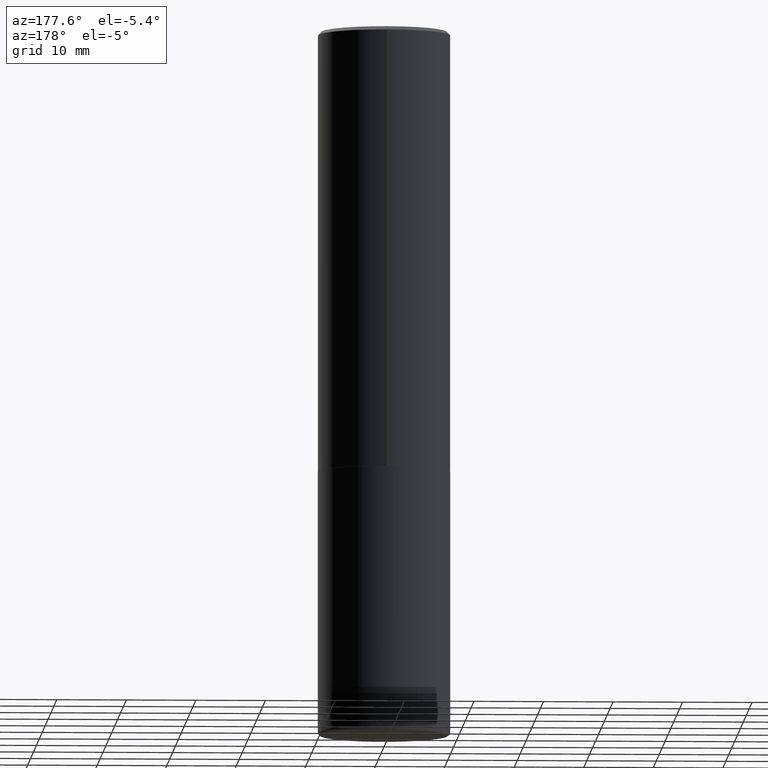
[diagram: clean part render]
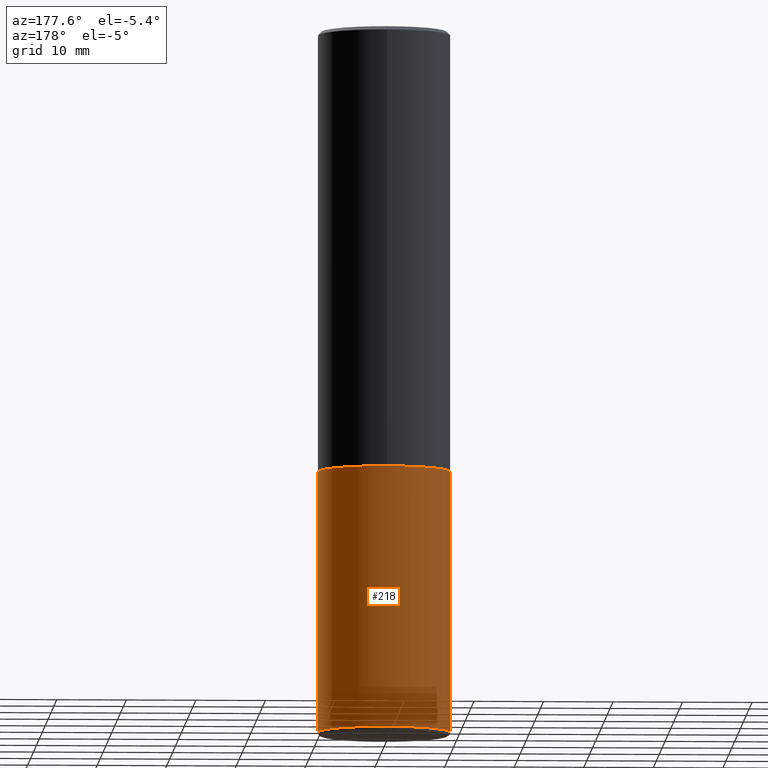
[diagram: same view with one face highlighted and labeled with its STEP entity id]
A machine part, auxiliary view. The second image highlights one B-rep face of the part: STEP entity #218.
In plain terms, the highlighted cylindrical surface (partial cylindrical patch) has radius 9.525 mm, axis along (-0, 0, 1).
Its self-contained STEP definition (entity closure, byte-faithful):
#10 = DIRECTION ( 'NONE',  ( -2.445468806185136597E-29, 3.491481338843145583E-15, 1.000000000000000000 ) ) ;
#13 = CYLINDRICAL_SURFACE ( 'NONE', #183, 0.3750000000000000555 ) ;
#17 = DIRECTION ( 'NONE',  ( 1.000000000000000000, -6.982962677686265922E-15, 4.876176775795935793E-29 ) ) ;
#19 = ORIENTED_EDGE ( 'NONE', *, *, #369, .T. ) ;
#31 = DIRECTION ( 'NONE',  ( 1.000000000000000000, -6.982962677686264344E-15, 0.000000000000000000 ) ) ;
#34 = VERTEX_POINT ( 'NONE', #95 ) ;
#40 = CARTESIAN_POINT ( 'NONE',  ( 0.000000000000000000, 0.000000000000000000, 0.000000000000000000 ) ) ;
#53 = EDGE_CURVE ( 'NONE', #34, #54, #314, .T. ) ;
#54 = VERTEX_POINT ( 'NONE', #356 ) ;
#55 = DIRECTION ( 'NONE',  ( -2.445468806185136877E-29, 3.491481338843145188E-15, 1.000000000000000000 ) ) ;
#56 = VERTEX_POINT ( 'NONE', #68 ) ;
#68 = CARTESIAN_POINT ( 'NONE',  ( -0.3749999999999999445, -1.123156046949534334E-14, -3.979999999999999982 ) ) ;
#74 = AXIS2_PLACEMENT_3D ( 'NONE', #379, #147, #268 ) ;
#95 = CARTESIAN_POINT ( 'NONE',  ( 0.3749999999999999445, -1.651470673272807063E-14, -3.979999999999999982 ) ) ;
#98 = CIRCLE ( 'NONE', #414, 0.3750000000000000555 ) ;
#106 = CARTESIAN_POINT ( 'NONE',  ( -0.3750000000000000555, -8.647864278751415502E-15, -2.499999999999999556 ) ) ;
#108 = EDGE_CURVE ( 'NONE', #54, #238, #98, .T. ) ;
#135 = CARTESIAN_POINT ( 'NONE',  ( 6.113672015462840371E-29, -8.728703347107863365E-15, -2.499999999999999556 ) ) ;
#144 = VECTOR ( 'NONE', #390, 39.37007874015748143 ) ;
#147 = DIRECTION ( 'NONE',  ( -2.445468806185136597E-29, 3.491481338843145583E-15, 1.000000000000000000 ) ) ;
#177 = ORIENTED_EDGE ( 'NONE', *, *, #335, .T. ) ;
#183 = AXIS2_PLACEMENT_3D ( 'NONE', #40, #10, #17 ) ;
#186 = ORIENTED_EDGE ( 'NONE', *, *, #108, .F. ) ;
#208 = LINE ( 'NONE', #210, #251 ) ;
#210 = CARTESIAN_POINT ( 'NONE',  ( -0.3750000000000000555, 2.664535259100376091E-15, -1.844600658845589598E-29 ) ) ;
#218 = ADVANCED_FACE ( 'NONE', ( #298 ), #13, .T. ) ;
#238 = VERTEX_POINT ( 'NONE', #106 ) ;
#245 = ORIENTED_EDGE ( 'NONE', *, *, #53, .F. ) ;
#251 = VECTOR ( 'NONE', #55, 39.37007874015748143 ) ;
#268 = DIRECTION ( 'NONE',  ( 1.000000000000000000, -6.982962677686266711E-15, 0.000000000000000000 ) ) ;
#294 = EDGE_LOOP ( 'NONE', ( #177, #19, #186, #245 ) ) ;
#298 = FACE_OUTER_BOUND ( 'NONE', #294, .T. ) ;
#314 = LINE ( 'NONE', #383, #144 ) ;
#335 = EDGE_CURVE ( 'NONE', #34, #56, #406, .T. ) ;
#356 = CARTESIAN_POINT ( 'NONE',  ( 0.3750000000000000555, -1.134731435124021180E-14, -2.499999999999999556 ) ) ;
#369 = EDGE_CURVE ( 'NONE', #56, #238, #208, .T. ) ;
#379 = CARTESIAN_POINT ( 'NONE',  ( 9.732965848616844417E-29, -1.389609572859572061E-14, -3.979999999999999982 ) ) ;
#383 = CARTESIAN_POINT ( 'NONE',  ( 0.3750000000000000555, -2.618611004132350016E-15, 1.828566290923476203E-29 ) ) ;
#385 = DIRECTION ( 'NONE',  ( -2.445468806185136597E-29, 3.491481338843145583E-15, 1.000000000000000000 ) ) ;
#390 = DIRECTION ( 'NONE',  ( -2.445468806185136877E-29, 3.491481338843145188E-15, 1.000000000000000000 ) ) ;
#406 = CIRCLE ( 'NONE', #74, 0.3750000000000000555 ) ;
#414 = AXIS2_PLACEMENT_3D ( 'NONE', #135, #385, #31 ) ;